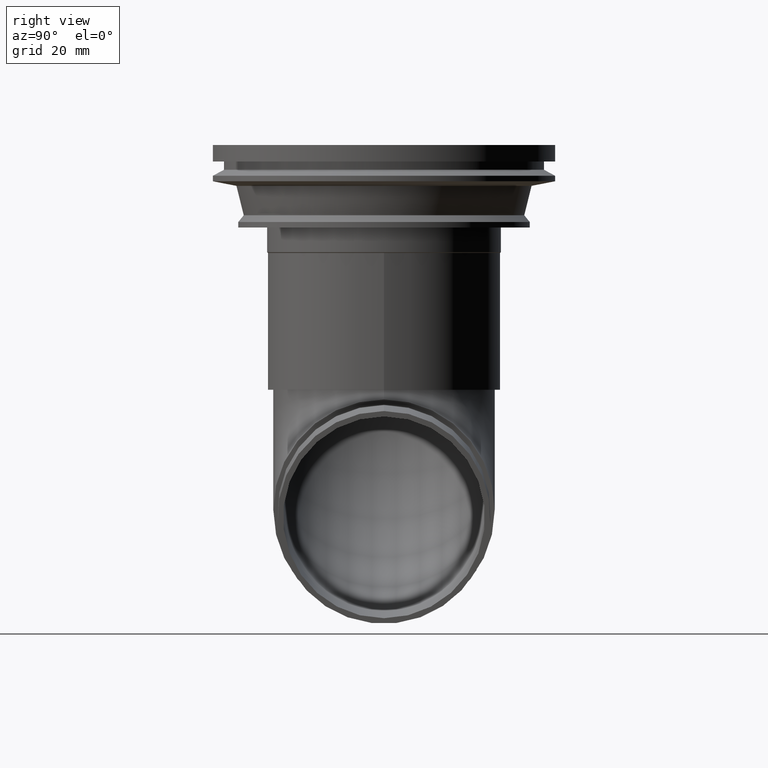
[diagram: clean part render]
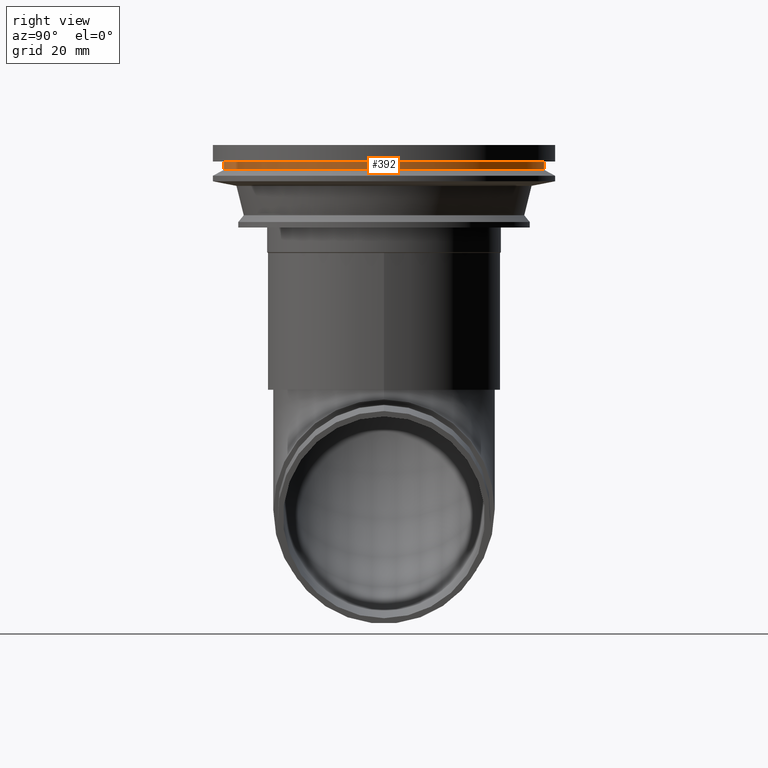
[diagram: same view with one face highlighted and labeled with its STEP entity id]
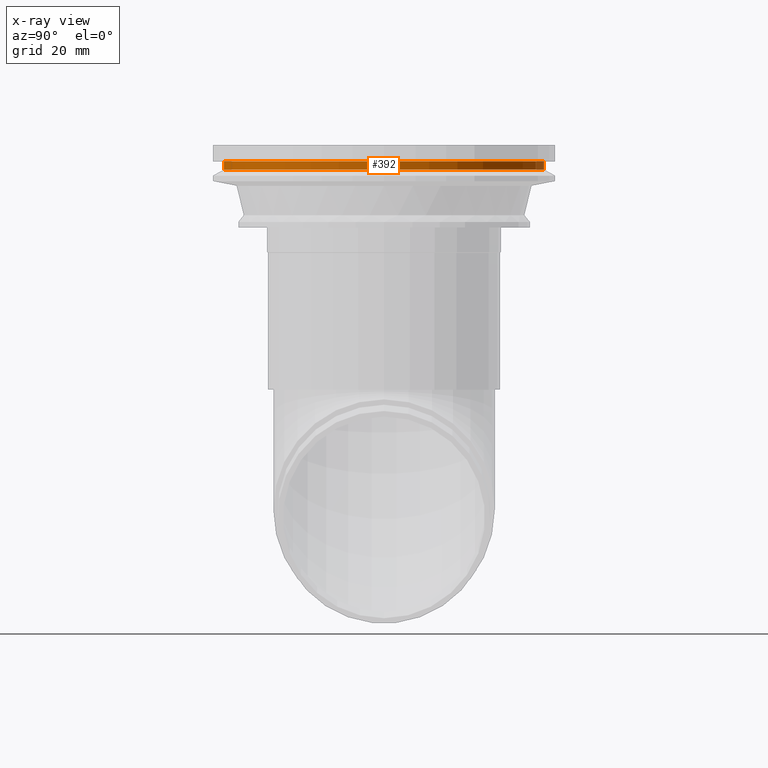
[diagram: x-ray of the same camera — body ghosted, the highlighted face saturated]
A machine part, right view. The second image highlights one B-rep face of the part: STEP entity #392.
The next image is the same camera in x-ray: the body ghosted, the highlighted face saturated — about 0% of this face is hidden behind the body in this view.
In plain terms, the highlighted cylindrical surface (bore or boss wall) has radius 58.25 mm, axis along (0, 0, -1).
Its self-contained STEP definition (entity closure, byte-faithful):
#28=CYLINDRICAL_SURFACE('',#464,58.25);
#89=ORIENTED_EDGE('',*,*,#118,.T.);
#90=ORIENTED_EDGE('',*,*,#138,.F.);
#118=EDGE_CURVE('',#153,#153,#188,.T.);
#138=EDGE_CURVE('',#173,#173,#208,.T.);
#153=VERTEX_POINT('',#640);
#173=VERTEX_POINT('',#700);
#188=CIRCLE('',#423,58.25);
#208=CIRCLE('',#463,58.25);
#264=EDGE_LOOP('',(#89));
#265=EDGE_LOOP('',(#90));
#334=FACE_BOUND('',#264,.T.);
#335=FACE_BOUND('',#265,.T.);
#392=ADVANCED_FACE('',(#334,#335),#28,.T.);
#423=AXIS2_PLACEMENT_3D('',#639,#500,#501);
#463=AXIS2_PLACEMENT_3D('',#699,#580,#581);
#464=AXIS2_PLACEMENT_3D('',#701,#582,#583);
#500=DIRECTION('',(0.,0.,-1.));
#501=DIRECTION('',(-1.,0.,0.));
#580=DIRECTION('',(0.,0.,-1.));
#581=DIRECTION('',(-1.,0.,0.));
#582=DIRECTION('',(0.,0.,-1.));
#583=DIRECTION('',(-1.,0.,0.));
#639=CARTESIAN_POINT('',(0.,0.,-6.00000000000001));
#640=CARTESIAN_POINT('',(-58.25,0.,-6.00000000000001));
#699=CARTESIAN_POINT('',(0.,0.,-9.00000000000001));
#700=CARTESIAN_POINT('',(-58.25,0.,-9.00000000000001));
#701=CARTESIAN_POINT('',(0.,0.,-5.));